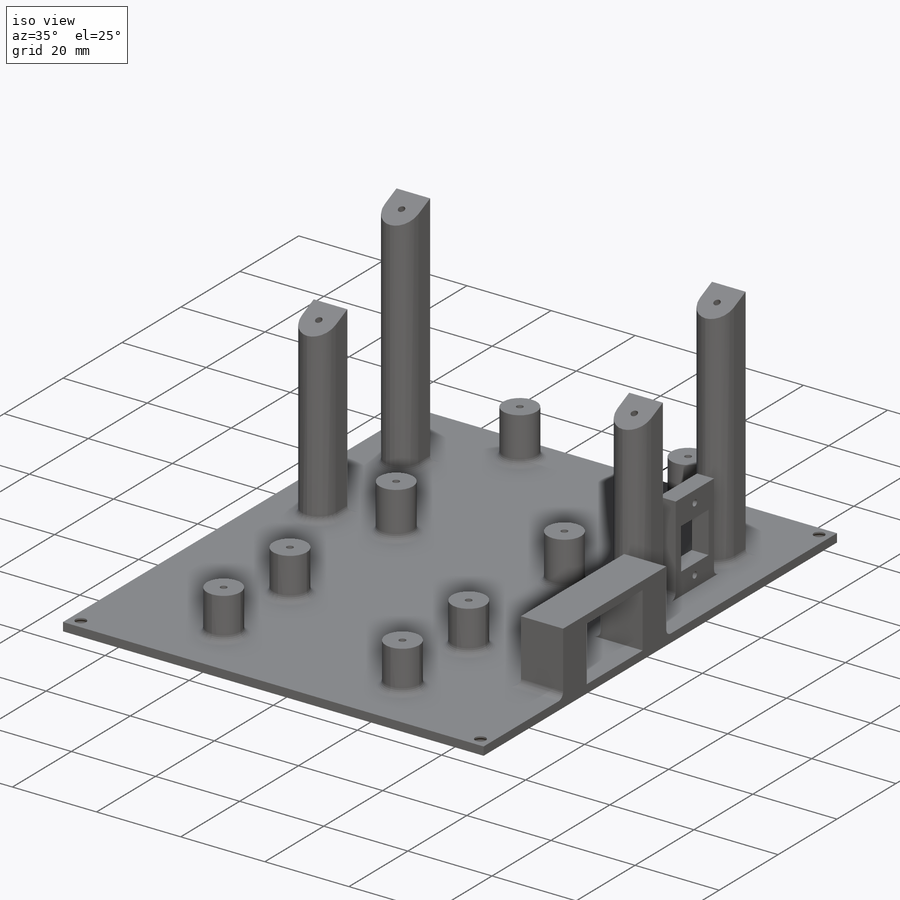
[diagram: iso view]
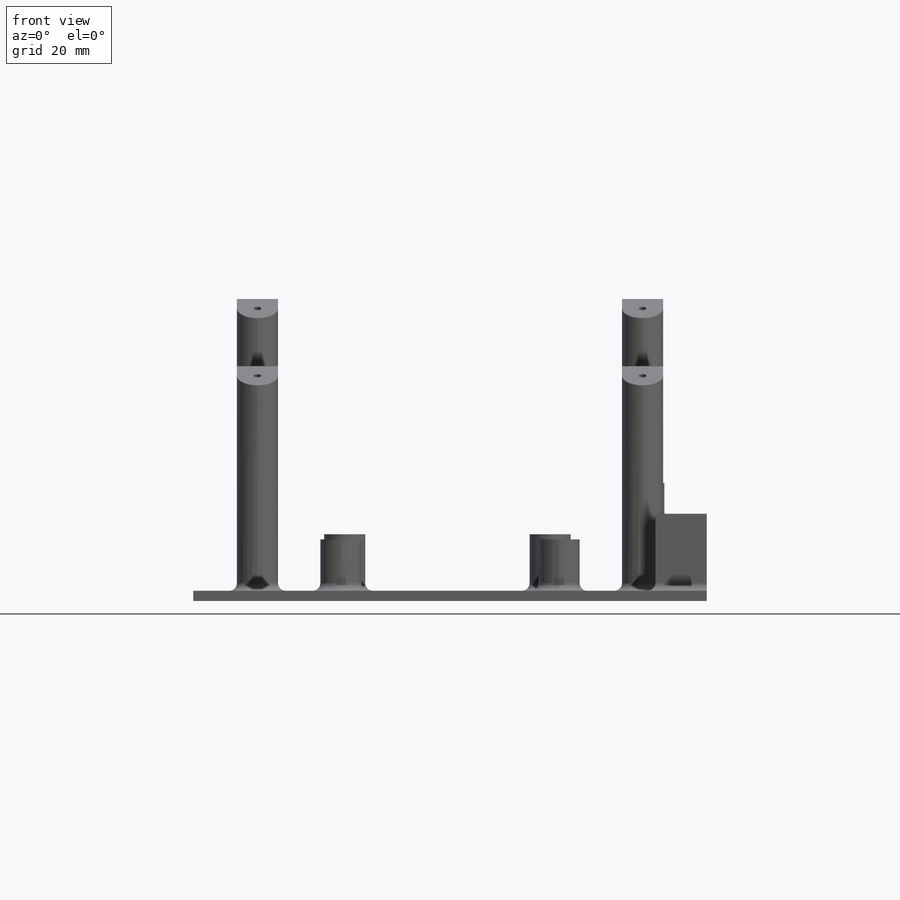
[diagram: front view]
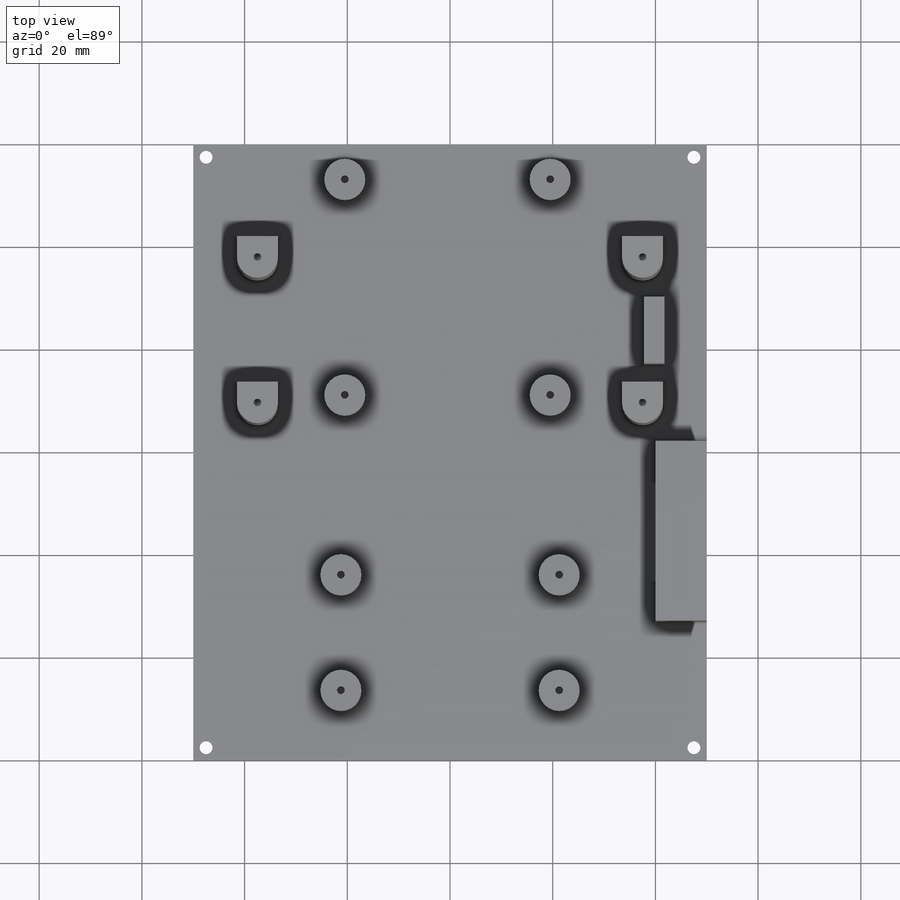
[diagram: top view]
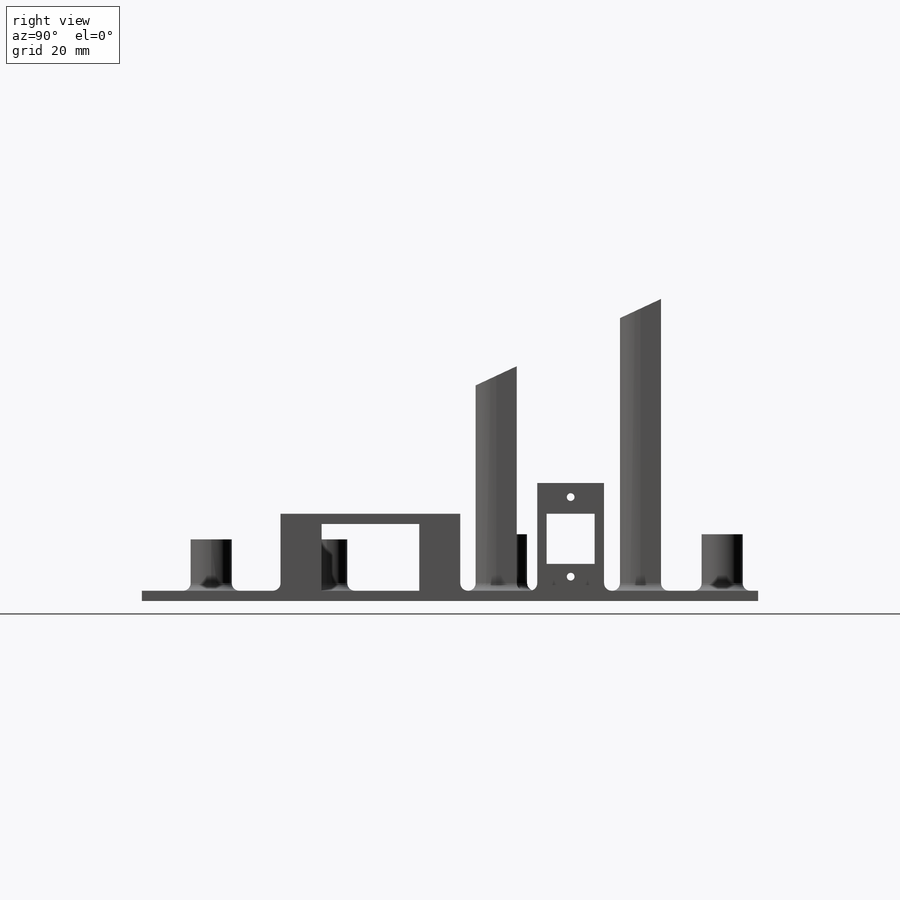
[diagram: right view]
SOLIDWORKS PART (.sldprt)
format: sldprt  version: not decoded by parser v0  size: 862,208 bytes
history: native  units: mm
features: sketch x23, fillet x12, extrude x9, cut_extrude x9, plane x3, material x1, chamfer x1 (+8 scaffold rows collapsed)
feature tree (66):
  scaffold x8  (default folders/planes/origin — collapsed)
  material  "Materiale <non specificato>"
  plane  "Piano frontale"
  plane  "Piano superiore"
  plane  "Piano destro"
  sketch  "Schizzo1"  dims[D1=100.0mm D2=120.0mm]
  extrude  "Estrusione-Estrusione1"  Depth=5mm
  sketch  "Schizzo2"  dims[D1=8.0mm D2=8.0mm D3=21.25mm D4=8.0mm D5=22.5mm D6=9.5mm D7=42.5mm D8=8.0mm]
  extrude  "Estrusione-Estrusione2"  Depth=10mm
  sketch  "Schizzo3"  dims[D1=25.0mm D2=8.0mm D3=8.0mm D4=37.5mm D5=8.0mm D6=37.5mm D7=8.0mm D8=28.1mm D9=28.1mm D10=25.0mm D11=8.0mm]
  extrude  "Estrusione-Estrusione3"  Depth=70mm
  sketch  "Schizzo4"  dims[D1=13.17mm D2=30.0mm]
  cut_extrude  "Taglio-Estrusione1"  Depth=91mm
  sketch  "Schizzo7"  dims[D1=0.5mm]
  sketch  "Schizzo8"  dims[D1=0.5mm]
  sketch  "Schizzo14"
  sketch  "Schizzo15"  dims[D1=1.5mm D2=1.5mm D3=1.5mm D4=1.5mm]
  sketch  "Schizzo17"
  cut_extrude  "Taglio-Estrusione2"  Depth=3mm
  fillet  "Raccordo1"  Radius=4mm
  fillet  "Raccordo2"  Radius=4mm
  fillet  "Raccordo3"  Radius=4mm
  fillet  "Raccordo5"  Radius=4mm
  fillet  "Raccordo6"  Radius=4mm
  fillet  "Raccordo7"  Radius=4mm
  sketch  "Schizzo18"  dims[D3=8.0mm D4=8.0mm D7=8.0mm D8=8.0mm D1=7.0mm D2=29.5mm D5=40.0mm D6=42.0mm]
  extrude  "Estrusione-Estrusione4"  Depth=11mm
  sketch  "Schizzo19"  dims[D1=1.5mm D2=1.5mm D3=1.5mm D4=1.5mm]
  sketch  "Schizzo20"
  sketch  "Schizzo22"  dims[D1=10.5mm D2=13.0mm D3=4.0mm D4=8.25mm]
  extrude  "Estrusione-Estrusione6"  Depth=5.25mm
  sketch  "Schizzo23"  dims[D1=1.825mm D2=1.825mm]
  extrude  "Estrusione-Estrusione7"  Depth=9.75mm
  sketch  "Schizzo24"
  extrude  "Estrusione-Estrusione8"  Depth=6mm
  sketch  "Schizzo25"
  sketch  "Schizzo26"  dims[D1=2.5mm D4=2.5mm D7=2.5mm D10=2.5mm D2=2.5mm D3=2.5mm D5=2.5mm D6=2.5mm D8=2.5mm D9=2.5mm D11=2.5mm D12=2.5mm]
  cut_extrude  "Taglio-Estrusione3"  Depth=10mm
  sketch  "Schizzo27"  dims[c1.D1=10.0mm c1.D2=~8.07083mm c2.D2=90.0deg c3.D2=8.0mm c3.D3=8.0mm c3.D4=10.0mm c3.D5=19.0mm c3.D6=27.0mm]
  extrude  "Estrusione-Estrusione9"  Depth=13mm
  sketch  "Schizzo28"
  extrude  "Estrusione-Estrusione10"  Depth=2mm
  sketch  "Schizzo29"
  cut_extrude  "Taglio-Estrusione4"  Depth=4mm
  cut_extrude  "Taglio-Estrusione5"  Depth=4mm
  cut_extrude  "Taglio-Estrusione6"  Depth=4mm
  cut_extrude  "Taglio-Estrusione7"  Depth=4mm
  sketch  "Schizzo32"  dims[D1=15.5mm D2=30.0mm D3=2.0mm]
  sketch  "Schizzo33"  dims[D2=1.5mm D4=1.5mm D1=2.75mm D3=18.25mm]
  cut_extrude  "Taglio-Estrusione8"  Depth=10mm
  fillet  "Raccordo8"  Radius=1.5mm
  fillet  "Raccordo9"  Radius=1.5mm
  fillet  "Raccordo10"  Radius=1.5mm
  fillet  "Raccordo13"  Radius=1.5mm
  fillet  "Raccordo14"  Radius=1.5mm
  fillet  "Raccordo15"  Radius=1.5mm
  sketch  "Schizzo34"  dims[D1=3.8mm D2=3.8mm D3=~2.295611mm]
  cut_extrude  "Taglio-Estrusione9"  Depth=1mm
  chamfer  "Smusso2"  Distance=0.65mm Angle=45deg
decode coverage: 47 of 54 modeling features carry decoded parameters
note: ~ marks probable driven/reference dimensions
note: suppression state not decoded; provenance and decode notes live in map.json
